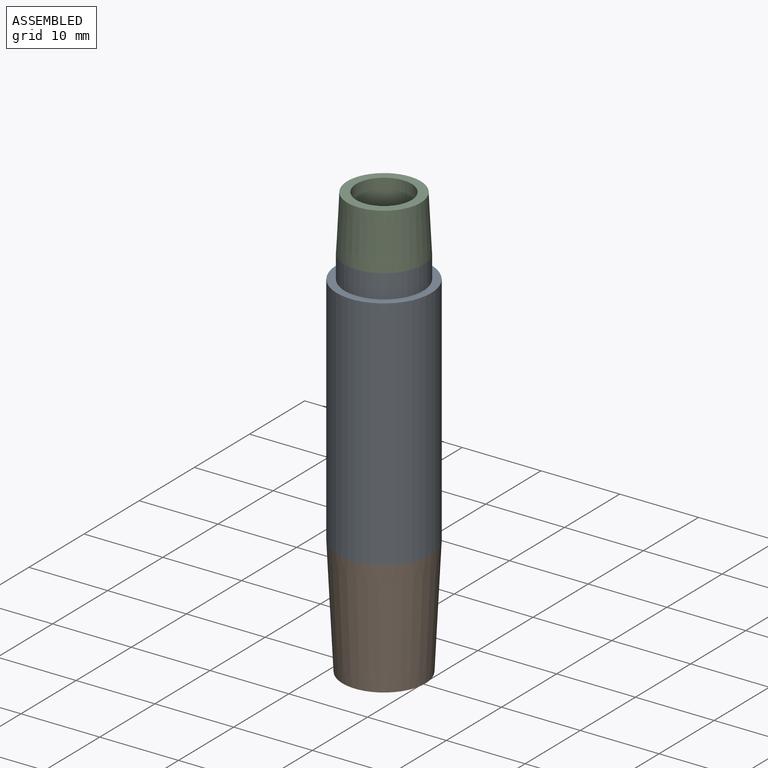
[diagram: assembled view]
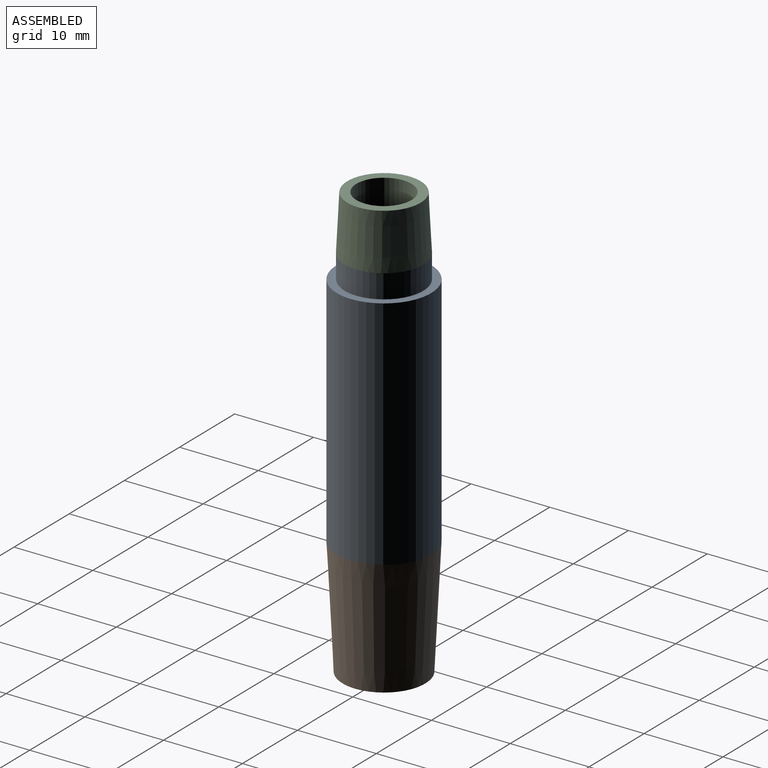
[diagram: assembled view, second angle]
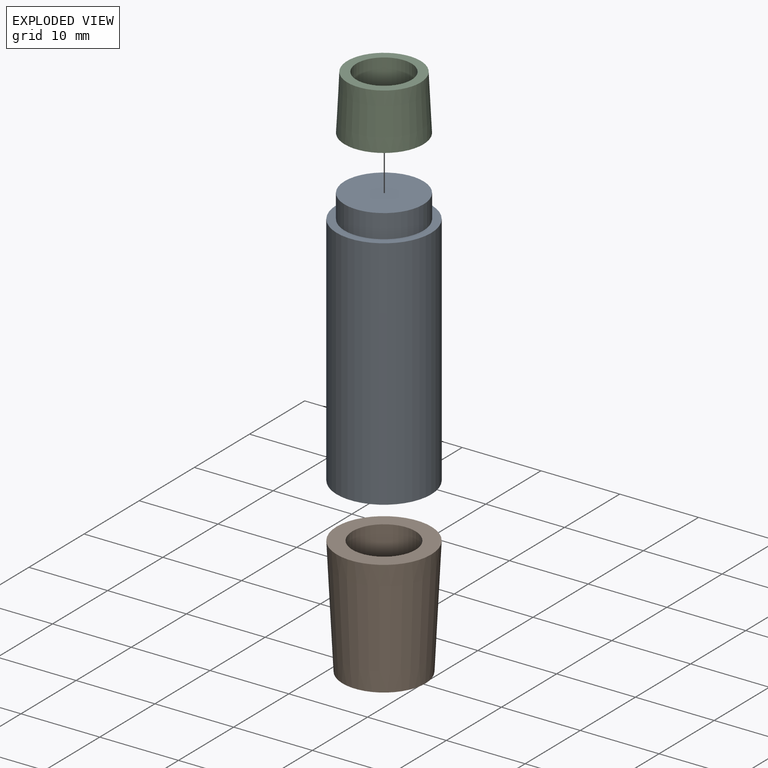
[diagram: exploded view]
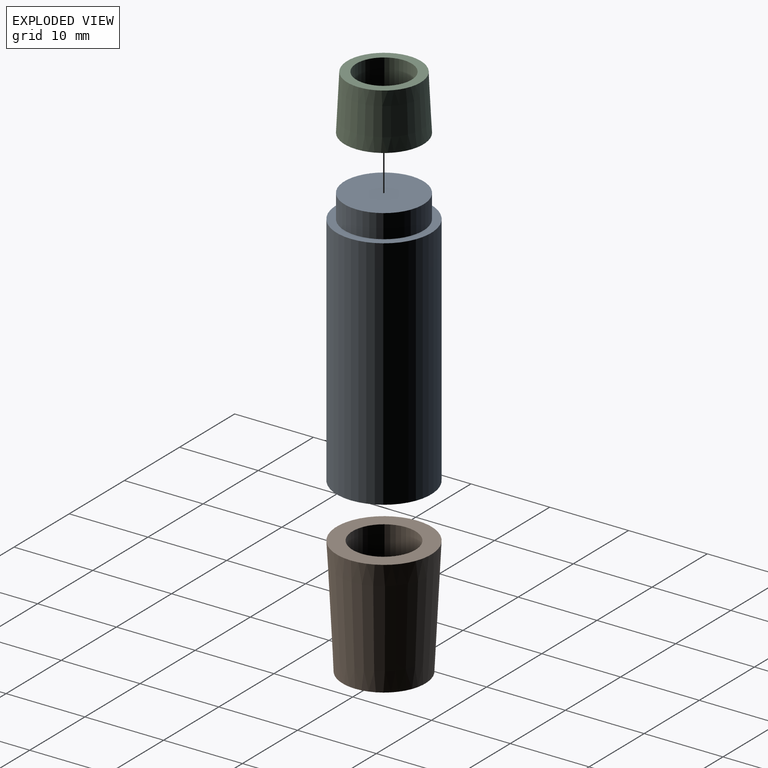
[diagram: exploded view, second angle]
ASSEMBLY  parts=3 mates=2
PART A: 7 faces, bbox 12x12x33 mm
  f0: cylinder r=6mm len=30mm, axis (0,0,-1), area 1131mm2, adj f1,f4
  f1: plane 12x12mm, normal (0,0,-1), area 62.8mm2, adj f0,f2
  f2: cylinder r=4mm len=8mm, axis (0,0,-1), area 125.7mm2, adj f1,f3
  f3: plane 8x8mm, normal (0,0,-1), area 50.3mm2, adj f2
  f4: plane 12x12mm, normal (0,0,1), area 34.6mm2, adj f0,f5
  f5: cylinder r=5mm len=10mm, axis (0,0,-1), area 94.2mm2, adj f4,f6
  f6: plane 10x10mm, normal (0,0,1), area 78.5mm2, adj f5
PART B: 4 faces, bbox 12x12x15 mm
  f0: cone r=6mm half-angle=2.9deg, axis (0,0,1), area 530.8mm2, adj f1,f2
  f1: plane 10.5x10.5mm, normal (0,0,-1), area 36.3mm2, adj f0,f3
  f2: plane 12x12mm, normal (0,0,1), area 62.8mm2, adj f0,f3
  f3: cylinder r=4mm len=15mm, axis (0,0,-1), area 377mm2, adj f1,f2
PART C: 4 faces, bbox 10x10x7 mm
  f0: cone r=5mm half-angle=2.9deg, axis (0,0,1), area 212.5mm2, adj f1,f2
  f1: plane 9.3x9.3mm, normal (0,0,-1), area 29.4mm2, adj f0,f3
  f2: plane 10x10mm, normal (0,0,1), area 40.1mm2, adj f0,f3
  f3: cylinder r=3.5mm len=7mm, axis (0,0,-1), area 153.9mm2, adj f1,f2
PLACE A t=(29.53,-6.35,-27.98)mm
PLACE B t=(29.53,-6.35,-27.98)mm
PLACE C rot(axis=(1,0,0),180deg) t=(29.53,-6.35,5.02)mm
MATE planar A.f0 <-> B.f0  axis (0,0,-1) through (29.53,-6.35,-27.98)mm
MATE revolute C.f3 <-> A.f5  axis (0,0,-1) through (29.53,-6.35,5.02)mm
